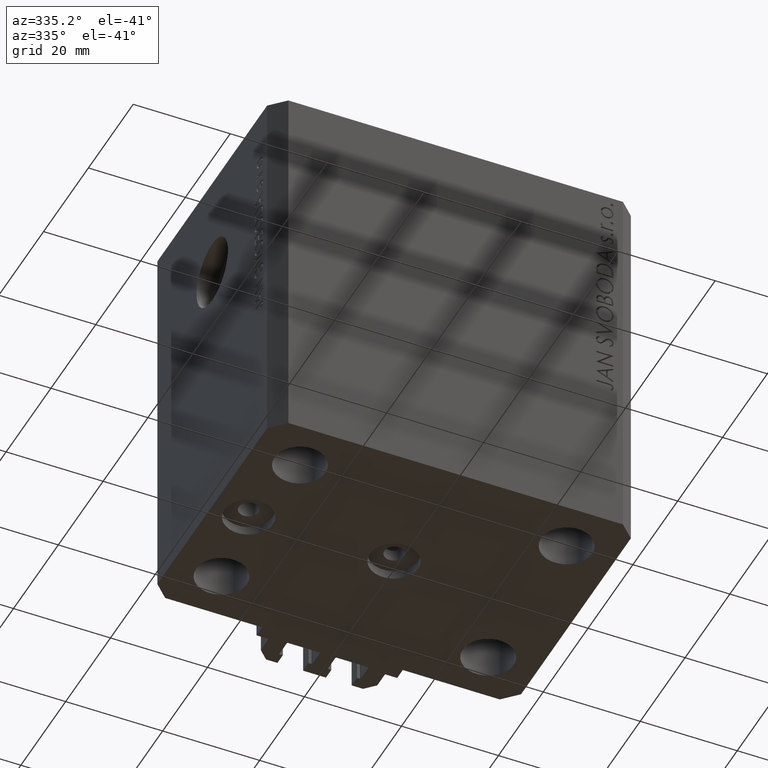
[diagram: clean part render]
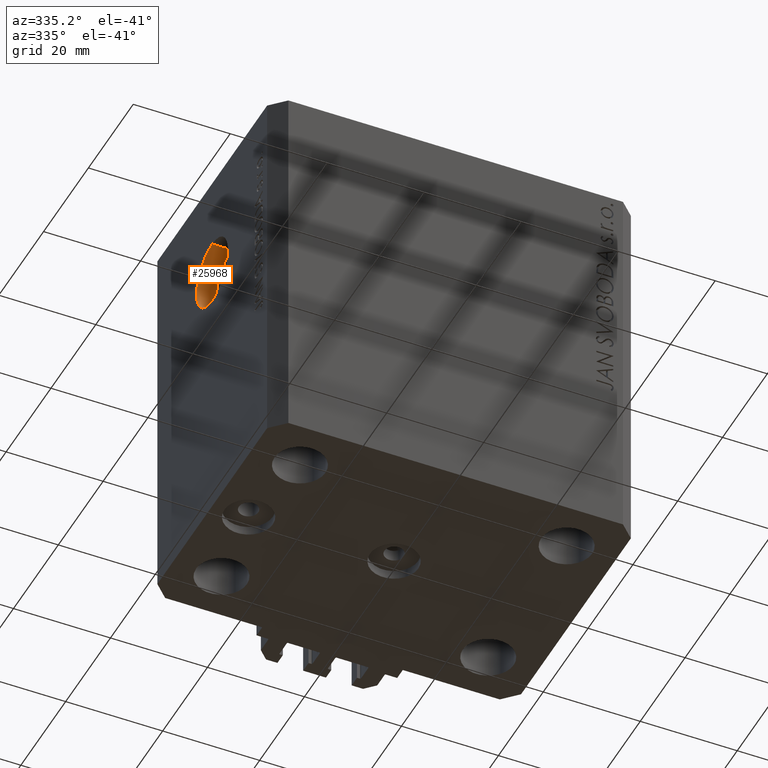
[diagram: same view with one face highlighted and labeled with its STEP entity id]
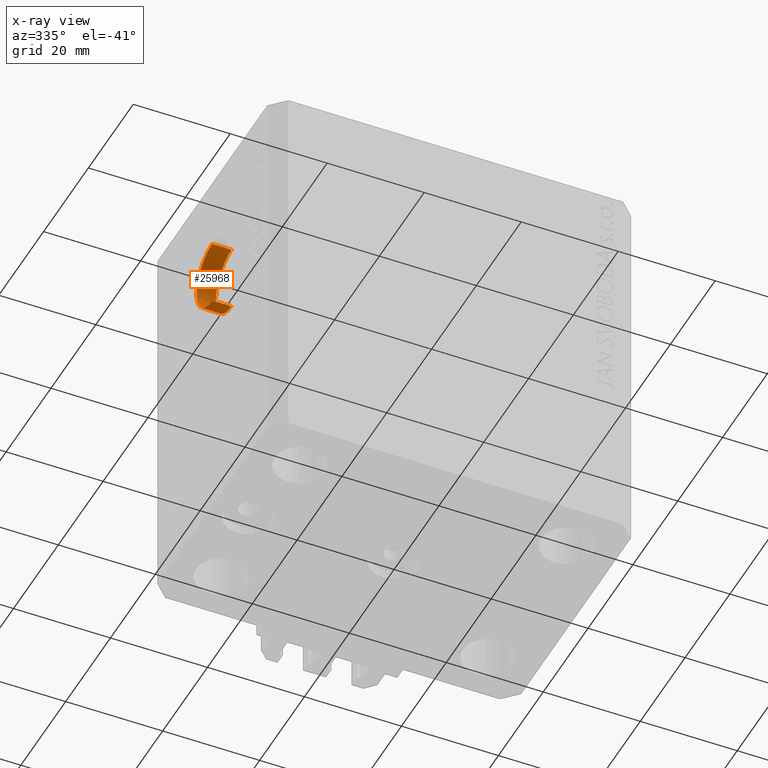
[diagram: x-ray of the same camera — body ghosted, the highlighted face saturated]
A machine part, auxiliary view. The second image highlights one B-rep face of the part: STEP entity #25968.
The next image is the same camera in x-ray: the body ghosted, the highlighted face saturated — about 0% of this face is hidden behind the body in this view.
In plain terms, the highlighted cylindrical surface (partial cylindrical patch) has radius 7 mm, axis along (-1, -0, -0).
Its self-contained STEP definition (entity closure, byte-faithful):
#504 = VERTEX_POINT ( 'NONE', #30190 ) ;
#506 = CARTESIAN_POINT ( 'NONE',  ( -33.49999999999998579, 0.000000000000000000, -15.00000000000000000 ) ) ;
#4035 = EDGE_CURVE ( 'NONE', #504, #7657, #42928, .T. ) ;
#5136 = ORIENTED_EDGE ( 'NONE', *, *, #37042, .T. ) ;
#5249 = CARTESIAN_POINT ( 'NONE',  ( -33.49999999999998579, 0.000000000000000000, -15.00000000000000000 ) ) ;
#6748 = DIRECTION ( 'NONE',  ( 0.000000000000000000, 0.000000000000000000, 1.000000000000000000 ) ) ;
#7326 = DIRECTION ( 'NONE',  ( -1.000000000000000000, -0.000000000000000000, -0.000000000000000000 ) ) ;
#7657 = VERTEX_POINT ( 'NONE', #44426 ) ;
#7965 = VERTEX_POINT ( 'NONE', #41415 ) ;
#9078 = DIRECTION ( 'NONE',  ( -1.000000000000000000, -0.000000000000000000, -0.000000000000000000 ) ) ;
#9426 = VERTEX_POINT ( 'NONE', #506 ) ;
#12223 = DIRECTION ( 'NONE',  ( 0.000000000000000000, 0.000000000000000000, 1.000000000000000000 ) ) ;
#13035 = ORIENTED_EDGE ( 'NONE', *, *, #42101, .T. ) ;
#13050 = AXIS2_PLACEMENT_3D ( 'NONE', #17404, #32039, #22382 ) ;
#15607 = DIRECTION ( 'NONE',  ( -1.000000000000000000, -0.000000000000000000, -0.000000000000000000 ) ) ;
#17404 = CARTESIAN_POINT ( 'NONE',  ( -37.49999999999999289, 0.000000000000000000, -22.00000000000000000 ) ) ;
#18582 = AXIS2_PLACEMENT_3D ( 'NONE', #45119, #9078, #12223 ) ;
#21571 = CIRCLE ( 'NONE', #43012, 6.999999999999999112 ) ;
#21956 = ORIENTED_EDGE ( 'NONE', *, *, #4035, .F. ) ;
#22138 = CARTESIAN_POINT ( 'NONE',  ( -33.49999999999998579, 0.000000000000000000, -22.00000000000000000 ) ) ;
#22382 = DIRECTION ( 'NONE',  ( 0.000000000000000000, 0.000000000000000000, 1.000000000000000000 ) ) ;
#22760 = ORIENTED_EDGE ( 'NONE', *, *, #43382, .F. ) ;
#22811 = LINE ( 'NONE', #5249, #30266 ) ;
#23513 = FACE_OUTER_BOUND ( 'NONE', #31884, .T. ) ;
#25968 = ADVANCED_FACE ( 'NONE', ( #23513 ), #27333, .F. ) ;
#27333 = CYLINDRICAL_SURFACE ( 'NONE', #18582, 6.999999999999999112 ) ;
#30190 = CARTESIAN_POINT ( 'NONE',  ( -33.49999999999998579, 8.572527594031474176E-16, -28.99999999999999645 ) ) ;
#30266 = VECTOR ( 'NONE', #15607, 1000.000000000000000 ) ;
#30695 = CIRCLE ( 'NONE', #13050, 6.999999999999999112 ) ;
#31884 = EDGE_LOOP ( 'NONE', ( #21956, #22760, #5136, #13035 ) ) ;
#32039 = DIRECTION ( 'NONE',  ( -1.000000000000000000, 0.000000000000000000, 0.000000000000000000 ) ) ;
#37042 = EDGE_CURVE ( 'NONE', #9426, #7965, #22811, .T. ) ;
#40610 = VECTOR ( 'NONE', #7326, 1000.000000000000000 ) ;
#40618 = DIRECTION ( 'NONE',  ( -1.000000000000000000, 0.000000000000000000, 0.000000000000000000 ) ) ;
#41415 = CARTESIAN_POINT ( 'NONE',  ( -37.49999999999999289, 0.000000000000000000, -15.00000000000000000 ) ) ;
#42101 = EDGE_CURVE ( 'NONE', #7965, #7657, #30695, .T. ) ;
#42928 = LINE ( 'NONE', #46059, #40610 ) ;
#43012 = AXIS2_PLACEMENT_3D ( 'NONE', #22138, #40618, #6748 ) ;
#43382 = EDGE_CURVE ( 'NONE', #9426, #504, #21571, .T. ) ;
#44426 = CARTESIAN_POINT ( 'NONE',  ( -37.49999999999999289, 8.572527594031474176E-16, -28.99999999999999645 ) ) ;
#45119 = CARTESIAN_POINT ( 'NONE',  ( -33.49999999999998579, 0.000000000000000000, -22.00000000000000000 ) ) ;
#46059 = CARTESIAN_POINT ( 'NONE',  ( -33.49999999999998579, 8.572527594031473190E-16, -28.99999999999999645 ) ) ;